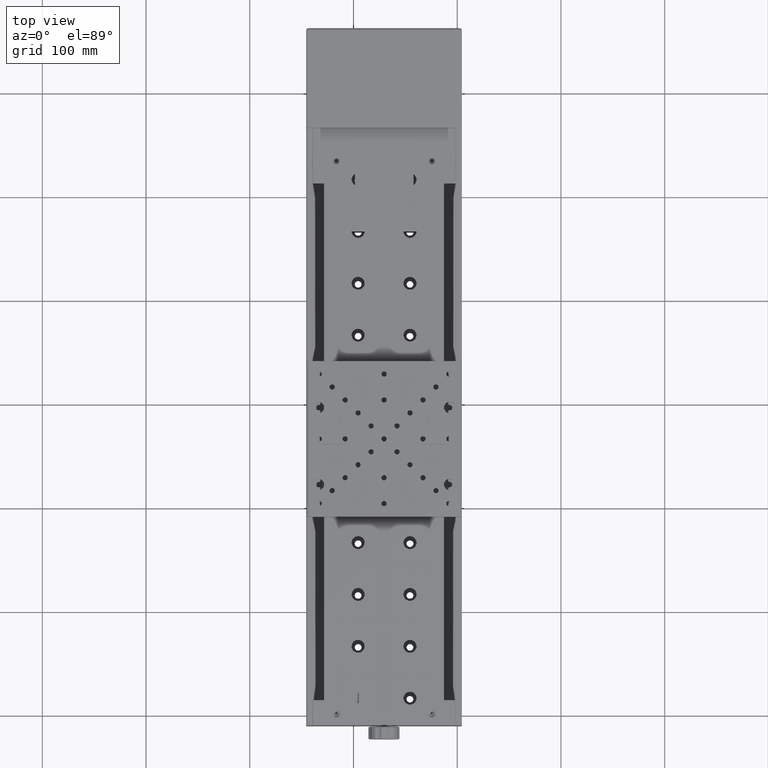
[diagram: clean part render]
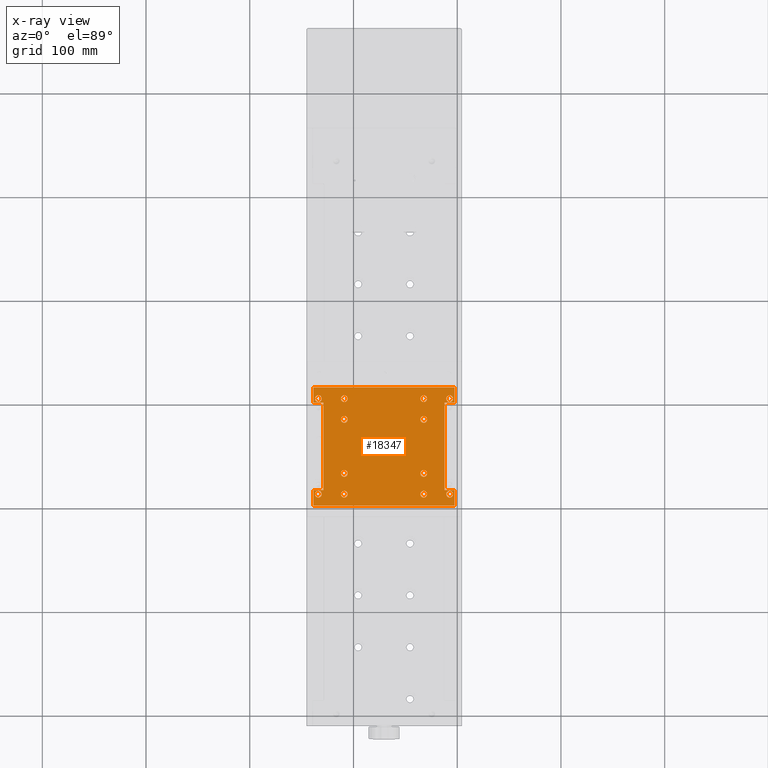
[diagram: x-ray — body ghosted, one internal face saturated and labeled with its STEP entity id]
A machine part, top view, then the same camera in x-ray: the body is ghosted and one INTERNAL B-rep face — a face not visible from any outside direction — is saturated and labeled: STEP entity #18347.
In plain terms, the highlighted planar face has unit normal (0, -0, 1).
Its self-contained STEP definition (entity closure, byte-faithful):
#346 = ORIENTED_EDGE ( 'NONE', *, *, #75438, .F. ) ;
#429 = EDGE_CURVE ( 'NONE', #1476, #4465, #35926, .T. ) ;
#568 = CARTESIAN_POINT ( 'NONE',  ( -128.8854323028809858, 116.8576019277921887, 34.04665025355615171 ) ) ;
#652 = EDGE_CURVE ( 'NONE', #51161, #11565, #21382, .T. ) ;
#1138 = CARTESIAN_POINT ( 'NONE',  ( -35.53543230288079968, 185.0076019277925070, 34.04665025355615171 ) ) ;
#1196 = DIRECTION ( 'NONE',  ( 0.000000000000000000, -2.758753472158164656E-17, 1.000000000000000000 ) ) ;
#1245 = DIRECTION ( 'NONE',  ( 0.000000000000000000, -2.758753472158164656E-17, 1.000000000000000000 ) ) ;
#1323 = AXIS2_PLACEMENT_3D ( 'NONE', #13980, #76557, #39899 ) ;
#1476 = VERTEX_POINT ( 'NONE', #72974 ) ;
#1538 = LINE ( 'NONE', #63654, #41041 ) ;
#1578 = VERTEX_POINT ( 'NONE', #44133 ) ;
#1585 = EDGE_CURVE ( 'NONE', #54900, #79260, #42820, .T. ) ;
#2040 = DIRECTION ( 'NONE',  ( 0.000000000000000000, -2.758753472158164656E-17, 1.000000000000000000 ) ) ;
#2272 = ORIENTED_EDGE ( 'NONE', *, *, #20201, .F. ) ;
#2398 = DIRECTION ( 'NONE',  ( 0.000000000000000000, -2.758753472158164656E-17, 1.000000000000000000 ) ) ;
#2934 = ORIENTED_EDGE ( 'NONE', *, *, #31815, .T. ) ;
#3252 = VECTOR ( 'NONE', #63282, 1000.000000000000000 ) ;
#3369 = CARTESIAN_POINT ( 'NONE',  ( -112.1354323028808153, 132.9076019277922285, 34.04665025355615171 ) ) ;
#3401 = AXIS2_PLACEMENT_3D ( 'NONE', #6686, #24832, #24422 ) ;
#3509 = CARTESIAN_POINT ( 'NONE',  ( -112.1354323028808153, 205.0076019277925070, 34.04665025355615171 ) ) ;
#3899 = ORIENTED_EDGE ( 'NONE', *, *, #51355, .T. ) ;
#4029 = DIRECTION ( 'NONE',  ( -1.000000000000000000, 0.000000000000000000, 0.000000000000000000 ) ) ;
#4106 = EDGE_CURVE ( 'NONE', #16637, #67139, #11739, .T. ) ;
#4465 = VERTEX_POINT ( 'NONE', #64538 ) ;
#4651 = CARTESIAN_POINT ( 'NONE',  ( -2.285432302880815225, 102.0576019277922057, 34.04665025355615171 ) ) ;
#4688 = VERTEX_POINT ( 'NONE', #11288 ) ;
#4696 = CARTESIAN_POINT ( 'NONE',  ( -108.8854323028808011, 185.0076019277925070, 34.04665025355615171 ) ) ;
#5036 = DIRECTION ( 'NONE',  ( -2.670562739619359873E-16, -1.000000000000000000, -2.758753472158164656E-17 ) ) ;
#5493 = DIRECTION ( 'NONE',  ( 0.000000000000000000, -2.758753472158164656E-17, 1.000000000000000000 ) ) ;
#5860 = DIRECTION ( 'NONE',  ( 0.000000000000000000, -2.758753472158164656E-17, 1.000000000000000000 ) ) ;
#6518 = EDGE_CURVE ( 'NONE', #53971, #71647, #36723, .T. ) ;
#6555 = VERTEX_POINT ( 'NONE', #7779 ) ;
#6619 = EDGE_CURVE ( 'NONE', #64746, #38952, #32482, .T. ) ;
#6686 = CARTESIAN_POINT ( 'NONE',  ( -108.8854323028808011, 205.0076019277925070, 34.04665025355615171 ) ) ;
#6689 = CARTESIAN_POINT ( 'NONE',  ( -146.8150681160723821, 201.0576019277924900, 34.04665025355615171 ) ) ;
#6880 = DIRECTION ( 'NONE',  ( -1.000000000000000000, 3.885780586188049864E-16, 5.916456789157590292E-31 ) ) ;
#7348 = DIRECTION ( 'NONE',  ( -1.000000000000000000, 0.000000000000000000, 0.000000000000000000 ) ) ;
#7497 = CARTESIAN_POINT ( 'NONE',  ( -112.1354323028808153, 112.9076019277922001, 34.04665025355615171 ) ) ;
#7779 = CARTESIAN_POINT ( 'NONE',  ( -2.485432302880735467, 215.8576019277925298, 34.04665025355615171 ) ) ;
#7892 = DIRECTION ( 'NONE',  ( 1.000000000000000000, -3.885780586188049864E-16, -5.916456789157590292E-31 ) ) ;
#8255 = DIRECTION ( 'NONE',  ( 0.000000000000000000, -2.758753472158164656E-17, 1.000000000000000000 ) ) ;
#8354 = ORIENTED_EDGE ( 'NONE', *, *, #652, .F. ) ;
#8466 = CARTESIAN_POINT ( 'NONE',  ( -29.03543230288079968, 185.0076019277925070, 34.04665025355615171 ) ) ;
#8693 = VERTEX_POINT ( 'NONE', #68420 ) ;
#9189 = VERTEX_POINT ( 'NONE', #56776 ) ;
#9626 = VERTEX_POINT ( 'NONE', #77558 ) ;
#9930 = EDGE_CURVE ( 'NONE', #81433, #12419, #28932, .T. ) ;
#10055 = EDGE_CURVE ( 'NONE', #9626, #76110, #23640, .T. ) ;
#10629 = DIRECTION ( 'NONE',  ( 0.000000000000000000, -2.758753472158164656E-17, 1.000000000000000000 ) ) ;
#10728 = FACE_BOUND ( 'NONE', #24854, .T. ) ;
#10939 = AXIS2_PLACEMENT_3D ( 'NONE', #80204, #13005, #38110 ) ;
#11203 = VERTEX_POINT ( 'NONE', #3369 ) ;
#11288 = CARTESIAN_POINT ( 'NONE',  ( -10.53543230288079968, 112.9076019277922001, 34.04665025355615171 ) ) ;
#11565 = VERTEX_POINT ( 'NONE', #27493 ) ;
#11613 = CIRCLE ( 'NONE', #26094, 3.250000000000002665 ) ;
#11739 = CIRCLE ( 'NONE', #43230, 3.250000000000002665 ) ;
#12404 = CIRCLE ( 'NONE', #61203, 3.250000000000000444 ) ;
#12419 = VERTEX_POINT ( 'NONE', #41616 ) ;
#12588 = CIRCLE ( 'NONE', #38908, 3.250000000000002665 ) ;
#12679 = CARTESIAN_POINT ( 'NONE',  ( -32.28543230288079968, 132.9076019277922285, 34.04665025355615171 ) ) ;
#13002 = CIRCLE ( 'NONE', #49748, 3.250000000000002665 ) ;
#13005 = DIRECTION ( 'NONE',  ( 0.000000000000000000, -2.758753472158164656E-17, 1.000000000000000000 ) ) ;
#13350 = DIRECTION ( 'NONE',  ( 2.670562739619359873E-16, 1.000000000000000000, 2.758753472158164656E-17 ) ) ;
#13493 = DIRECTION ( 'NONE',  ( 0.000000000000000000, -2.758753472158164656E-17, 1.000000000000000000 ) ) ;
#13980 = CARTESIAN_POINT ( 'NONE',  ( -7.285432302880780142, 205.0076019277925070, 34.04665025355615171 ) ) ;
#14557 = VERTEX_POINT ( 'NONE', #60547 ) ;
#15189 = CARTESIAN_POINT ( 'NONE',  ( -128.8854323028809858, 201.0576019277924900, 34.04665025355615171 ) ) ;
#15319 = EDGE_LOOP ( 'NONE', ( #58737, #37011 ) ) ;
#15348 = CARTESIAN_POINT ( 'NONE',  ( -138.6854323028809972, 101.8576019277922029, 34.04665025355615171 ) ) ;
#15489 = VECTOR ( 'NONE', #23389, 1000.000000000000000 ) ;
#15687 = DIRECTION ( 'NONE',  ( 0.000000000000000000, -2.758753472158164656E-17, 1.000000000000000000 ) ) ;
#15947 = DIRECTION ( 'NONE',  ( 0.000000000000000000, -2.758753472158164656E-17, 1.000000000000000000 ) ) ;
#16357 = DIRECTION ( 'NONE',  ( 0.000000000000000000, -2.758753472158164656E-17, 1.000000000000000000 ) ) ;
#16589 = EDGE_CURVE ( 'NONE', #11203, #14557, #18963, .T. ) ;
#16637 = VERTEX_POINT ( 'NONE', #72729 ) ;
#16726 = CIRCLE ( 'NONE', #73252, 3.250000000000002665 ) ;
#16826 = EDGE_LOOP ( 'NONE', ( #21243, #53288 ) ) ;
#16884 = VERTEX_POINT ( 'NONE', #75615 ) ;
#17211 = DIRECTION ( 'NONE',  ( 0.000000000000000000, -2.758753472158164656E-17, 1.000000000000000000 ) ) ;
#17241 = CARTESIAN_POINT ( 'NONE',  ( -137.1354323028808153, 112.9076019277922001, 34.04665025355615171 ) ) ;
#17302 = CARTESIAN_POINT ( 'NONE',  ( -0.2854323028808165019, 101.8576019277922029, 34.04665025355615171 ) ) ;
#17584 = AXIS2_PLACEMENT_3D ( 'NONE', #47617, #15947, #54186 ) ;
#18347 = ADVANCED_FACE ( 'NONE', ( #36239, #42818, #54742, #61315, #79880, #10728, #67907, #23508, #31291, #49788, #81094, #30085, #67499 ), #18943, .T. ) ;
#18943 = PLANE ( 'NONE',  #34745 ) ;
#18963 = CIRCLE ( 'NONE', #17584, 3.250000000000002665 ) ;
#19225 = CIRCLE ( 'NONE', #21863, 3.249999999999999556 ) ;
#19527 = CARTESIAN_POINT ( 'NONE',  ( -35.53543230288079968, 132.9076019277922285, 34.04665025355615171 ) ) ;
#19702 = CARTESIAN_POINT ( 'NONE',  ( -133.8854323028808153, 112.9076019277922001, 34.04665025355615171 ) ) ;
#19748 = CARTESIAN_POINT ( 'NONE',  ( -29.03543230288079968, 112.9076019277922001, 34.04665025355615171 ) ) ;
#19877 = EDGE_LOOP ( 'NONE', ( #31028, #39839 ) ) ;
#20007 = CIRCLE ( 'NONE', #37152, 3.250000000000002665 ) ;
#20201 = EDGE_CURVE ( 'NONE', #39409, #69260, #58015, .T. ) ;
#20480 = AXIS2_PLACEMENT_3D ( 'NONE', #46009, #2398, #70716 ) ;
#20568 = CARTESIAN_POINT ( 'NONE',  ( -7.285432302880810340, 112.9076019277922001, 34.04665025355615171 ) ) ;
#20687 = DIRECTION ( 'NONE',  ( -1.000000000000000000, 0.000000000000000000, 0.000000000000000000 ) ) ;
#21024 = CARTESIAN_POINT ( 'NONE',  ( -32.28543230288079968, 205.0076019277925070, 34.04665025355615171 ) ) ;
#21243 = ORIENTED_EDGE ( 'NONE', *, *, #69510, .F. ) ;
#21382 = CIRCLE ( 'NONE', #58155, 3.250000000000002665 ) ;
#21494 = DIRECTION ( 'NONE',  ( 0.000000000000000000, -2.758753472158164656E-17, 1.000000000000000000 ) ) ;
#21863 = AXIS2_PLACEMENT_3D ( 'NONE', #67590, #80376, #61410 ) ;
#21921 = VERTEX_POINT ( 'NONE', #61214 ) ;
#22115 = ORIENTED_EDGE ( 'NONE', *, *, #78284, .T. ) ;
#22320 = VECTOR ( 'NONE', #38979, 1000.000000000000000 ) ;
#22333 = ORIENTED_EDGE ( 'NONE', *, *, #6518, .F. ) ;
#22733 = CARTESIAN_POINT ( 'NONE',  ( -133.8854323028808153, 205.0076019277925070, 34.04665025355615171 ) ) ;
#22820 = DIRECTION ( 'NONE',  ( -1.000000000000000000, 0.000000000000000000, 0.000000000000000000 ) ) ;
#23113 = ORIENTED_EDGE ( 'NONE', *, *, #72938, .F. ) ;
#23152 = CARTESIAN_POINT ( 'NONE',  ( -146.8150681160723821, 201.0576019277924900, 34.04665025355615171 ) ) ;
#23375 = VECTOR ( 'NONE', #35074, 1000.000000000000000 ) ;
#23389 = DIRECTION ( 'NONE',  ( -1.000000000000000000, 3.885780586188049864E-16, 5.916456789157590292E-31 ) ) ;
#23508 = FACE_BOUND ( 'NONE', #55554, .T. ) ;
#23640 = CIRCLE ( 'NONE', #74926, 3.250000000000002665 ) ;
#24422 = DIRECTION ( 'NONE',  ( -1.000000000000000000, 0.000000000000000000, 0.000000000000000000 ) ) ;
#24832 = DIRECTION ( 'NONE',  ( 0.000000000000000000, -2.758753472158164656E-17, 1.000000000000000000 ) ) ;
#24854 = EDGE_LOOP ( 'NONE', ( #49021, #65080 ) ) ;
#25109 = CARTESIAN_POINT ( 'NONE',  ( -32.28543230288079968, 112.9076019277922001, 34.04665025355615171 ) ) ;
#25678 = CARTESIAN_POINT ( 'NONE',  ( -2.485432302880765221, 116.8576019277921887, 34.04665025355615171 ) ) ;
#26094 = AXIS2_PLACEMENT_3D ( 'NONE', #21024, #77419, #45712 ) ;
#27196 = DIRECTION ( 'NONE',  ( -1.000000000000000000, 0.000000000000000000, 0.000000000000000000 ) ) ;
#27493 = CARTESIAN_POINT ( 'NONE',  ( -105.6354323028808011, 185.0076019277925070, 34.04665025355615171 ) ) ;
#27538 = CARTESIAN_POINT ( 'NONE',  ( -128.8854323028809858, 101.8576019277922029, 34.04665025355615171 ) ) ;
#27926 = EDGE_CURVE ( 'NONE', #11565, #51161, #48189, .T. ) ;
#28658 = CARTESIAN_POINT ( 'NONE',  ( -105.6354323028808011, 205.0076019277925070, 34.04665025355615171 ) ) ;
#28932 = CIRCLE ( 'NONE', #1323, 3.250000000000000444 ) ;
#29266 = DIRECTION ( 'NONE',  ( -1.000000000000000000, 0.000000000000000000, 0.000000000000000000 ) ) ;
#29489 = VECTOR ( 'NONE', #67559, 1000.000000000000000 ) ;
#29724 = DIRECTION ( 'NONE',  ( -1.000000000000000000, 0.000000000000000000, 0.000000000000000000 ) ) ;
#29747 = CIRCLE ( 'NONE', #74426, 3.250000000000002665 ) ;
#30085 = FACE_BOUND ( 'NONE', #50843, .T. ) ;
#30267 = CIRCLE ( 'NONE', #35532, 3.249999999999999556 ) ;
#30850 = ORIENTED_EDGE ( 'NONE', *, *, #34127, .T. ) ;
#30896 = DIRECTION ( 'NONE',  ( 0.000000000000000000, -1.000000000000000000, -2.758753472158164656E-17 ) ) ;
#30992 = CIRCLE ( 'NONE', #20480, 3.250000000000002665 ) ;
#31028 = ORIENTED_EDGE ( 'NONE', *, *, #9930, .F. ) ;
#31064 = CARTESIAN_POINT ( 'NONE',  ( -2.485432302880765221, 116.8576019277921887, 34.04665025355615171 ) ) ;
#31181 = CARTESIAN_POINT ( 'NONE',  ( -112.1354323028808153, 185.0076019277925070, 34.04665025355615171 ) ) ;
#31291 = FACE_BOUND ( 'NONE', #80835, .T. ) ;
#31337 = VERTEX_POINT ( 'NONE', #46803 ) ;
#31815 = EDGE_CURVE ( 'NONE', #53971, #40471, #68376, .T. ) ;
#32044 = ORIENTED_EDGE ( 'NONE', *, *, #40730, .T. ) ;
#32074 = DIRECTION ( 'NONE',  ( -1.000000000000000000, 0.000000000000000000, 0.000000000000000000 ) ) ;
#32420 = AXIS2_PLACEMENT_3D ( 'NONE', #4696, #5493, #22820 ) ;
#32482 = LINE ( 'NONE', #27538, #61181 ) ;
#33889 = CIRCLE ( 'NONE', #61454, 3.250000000000002665 ) ;
#34100 = ORIENTED_EDGE ( 'NONE', *, *, #4106, .F. ) ;
#34127 = EDGE_CURVE ( 'NONE', #4465, #46716, #69306, .T. ) ;
#34548 = AXIS2_PLACEMENT_3D ( 'NONE', #39872, #16357, #4029 ) ;
#34561 = CIRCLE ( 'NONE', #10939, 3.250000000000002665 ) ;
#34745 = AXIS2_PLACEMENT_3D ( 'NONE', #17302, #55148, #30896 ) ;
#35074 = DIRECTION ( 'NONE',  ( -1.455344893050667910E-16, -1.000000000000000000, -2.758753472158164656E-17 ) ) ;
#35344 = EDGE_CURVE ( 'NONE', #6555, #21921, #1538, .T. ) ;
#35532 = AXIS2_PLACEMENT_3D ( 'NONE', #20568, #1245, #63764 ) ;
#35776 = VECTOR ( 'NONE', #47540, 1000.000000000000000 ) ;
#35926 = LINE ( 'NONE', #4651, #63938 ) ;
#36186 = CARTESIAN_POINT ( 'NONE',  ( -137.1354323028808153, 205.0076019277925070, 34.04665025355615171 ) ) ;
#36239 = FACE_BOUND ( 'NONE', #19877, .T. ) ;
#36723 = LINE ( 'NONE', #62208, #50685 ) ;
#37011 = ORIENTED_EDGE ( 'NONE', *, *, #37484, .F. ) ;
#37152 = AXIS2_PLACEMENT_3D ( 'NONE', #46979, #21494, #20687 ) ;
#37431 = EDGE_LOOP ( 'NONE', ( #8354, #69676 ) ) ;
#37484 = EDGE_CURVE ( 'NONE', #14557, #11203, #16726, .T. ) ;
#37553 = CARTESIAN_POINT ( 'NONE',  ( -32.28543230288079968, 112.9076019277922001, 34.04665025355615171 ) ) ;
#37570 = EDGE_CURVE ( 'NONE', #9189, #58146, #13002, .T. ) ;
#37881 = ORIENTED_EDGE ( 'NONE', *, *, #37570, .F. ) ;
#38110 = DIRECTION ( 'NONE',  ( -1.000000000000000000, 0.000000000000000000, 0.000000000000000000 ) ) ;
#38250 = DIRECTION ( 'NONE',  ( -1.000000000000000000, 0.000000000000000000, 0.000000000000000000 ) ) ;
#38733 = ORIENTED_EDGE ( 'NONE', *, *, #70068, .F. ) ;
#38908 = AXIS2_PLACEMENT_3D ( 'NONE', #12679, #13493, #44764 ) ;
#38952 = VERTEX_POINT ( 'NONE', #15189 ) ;
#38979 = DIRECTION ( 'NONE',  ( 2.670562739619359873E-16, 1.000000000000000000, 2.758753472158164656E-17 ) ) ;
#39004 = CARTESIAN_POINT ( 'NONE',  ( 4.114523684553554439, 116.8576019277921887, 34.04665025355615171 ) ) ;
#39409 = VERTEX_POINT ( 'NONE', #1138 ) ;
#39480 = CARTESIAN_POINT ( 'NONE',  ( -133.8854323028808153, 112.9076019277922001, 34.04665025355615171 ) ) ;
#39839 = ORIENTED_EDGE ( 'NONE', *, *, #44698, .F. ) ;
#39872 = CARTESIAN_POINT ( 'NONE',  ( -32.28543230288079968, 185.0076019277925070, 34.04665025355615171 ) ) ;
#39899 = DIRECTION ( 'NONE',  ( -1.000000000000000000, 0.000000000000000000, 0.000000000000000000 ) ) ;
#40471 = VERTEX_POINT ( 'NONE', #62638 ) ;
#40589 = EDGE_CURVE ( 'NONE', #65134, #16884, #33889, .T. ) ;
#40730 = EDGE_CURVE ( 'NONE', #64746, #31337, #72345, .T. ) ;
#41041 = VECTOR ( 'NONE', #6880, 1000.000000000000000 ) ;
#41511 = ORIENTED_EDGE ( 'NONE', *, *, #35344, .T. ) ;
#41616 = CARTESIAN_POINT ( 'NONE',  ( -4.035432302880774813, 205.0076019277925070, 34.04665025355615171 ) ) ;
#42176 = VECTOR ( 'NONE', #13350, 1000.000000000000000 ) ;
#42696 = CARTESIAN_POINT ( 'NONE',  ( 4.114523684553554439, 116.8576019277921887, 34.04665025355615171 ) ) ;
#42818 = FACE_BOUND ( 'NONE', #51969, .T. ) ;
#42820 = CIRCLE ( 'NONE', #3401, 3.250000000000002665 ) ;
#43019 = LINE ( 'NONE', #6689, #76204 ) ;
#43148 = EDGE_LOOP ( 'NONE', ( #79281, #34100 ) ) ;
#43230 = AXIS2_PLACEMENT_3D ( 'NONE', #58038, #8255, #27196 ) ;
#43790 = ORIENTED_EDGE ( 'NONE', *, *, #51628, .T. ) ;
#43802 = EDGE_CURVE ( 'NONE', #46716, #71647, #45174, .T. ) ;
#44085 = ORIENTED_EDGE ( 'NONE', *, *, #6619, .F. ) ;
#44113 = CARTESIAN_POINT ( 'NONE',  ( -138.6854323028809972, 201.0576019277924900, 34.04665025355615171 ) ) ;
#44133 = CARTESIAN_POINT ( 'NONE',  ( -29.03543230288079968, 205.0076019277925070, 34.04665025355615171 ) ) ;
#44698 = EDGE_CURVE ( 'NONE', #12419, #81433, #12404, .T. ) ;
#44764 = DIRECTION ( 'NONE',  ( -1.000000000000000000, 0.000000000000000000, 0.000000000000000000 ) ) ;
#45078 = ORIENTED_EDGE ( 'NONE', *, *, #78804, .F. ) ;
#45147 = LINE ( 'NONE', #51718, #22320 ) ;
#45174 = LINE ( 'NONE', #39004, #3252 ) ;
#45202 = VERTEX_POINT ( 'NONE', #51935 ) ;
#45620 = DIRECTION ( 'NONE',  ( 1.455344893050667910E-16, 1.000000000000000000, 2.758753472158164656E-17 ) ) ;
#45712 = DIRECTION ( 'NONE',  ( -1.000000000000000000, 0.000000000000000000, 0.000000000000000000 ) ) ;
#46009 = CARTESIAN_POINT ( 'NONE',  ( -108.8854323028808011, 112.9076019277922001, 34.04665025355615171 ) ) ;
#46016 = EDGE_CURVE ( 'NONE', #67139, #16637, #12588, .T. ) ;
#46302 = CARTESIAN_POINT ( 'NONE',  ( -108.8854323028808011, 205.0076019277925070, 34.04665025355615171 ) ) ;
#46716 = VERTEX_POINT ( 'NONE', #25678 ) ;
#46803 = CARTESIAN_POINT ( 'NONE',  ( -138.6854323028809972, 116.8576019277921887, 34.04665025355615171 ) ) ;
#46923 = CIRCLE ( 'NONE', #53487, 3.250000000000002665 ) ;
#46979 = CARTESIAN_POINT ( 'NONE',  ( -32.28543230288079968, 205.0076019277925070, 34.04665025355615171 ) ) ;
#47540 = DIRECTION ( 'NONE',  ( -1.455344893050667910E-16, -1.000000000000000000, -2.758753472158164656E-17 ) ) ;
#47617 = CARTESIAN_POINT ( 'NONE',  ( -108.8854323028808011, 132.9076019277922285, 34.04665025355615171 ) ) ;
#47728 = EDGE_CURVE ( 'NONE', #79260, #54900, #46923, .T. ) ;
#48189 = CIRCLE ( 'NONE', #32420, 3.250000000000002665 ) ;
#48479 = DIRECTION ( 'NONE',  ( -1.000000000000000000, 0.000000000000000000, 0.000000000000000000 ) ) ;
#49021 = ORIENTED_EDGE ( 'NONE', *, *, #66535, .F. ) ;
#49748 = AXIS2_PLACEMENT_3D ( 'NONE', #25109, #69515, #32074 ) ;
#49759 = DIRECTION ( 'NONE',  ( 0.000000000000000000, -2.758753472158164656E-17, 1.000000000000000000 ) ) ;
#49788 = FACE_BOUND ( 'NONE', #16826, .T. ) ;
#49943 = ORIENTED_EDGE ( 'NONE', *, *, #1585, .F. ) ;
#50280 = LINE ( 'NONE', #44113, #35776 ) ;
#50393 = ORIENTED_EDGE ( 'NONE', *, *, #66131, .T. ) ;
#50685 = VECTOR ( 'NONE', #5036, 1000.000000000000000 ) ;
#50843 = EDGE_LOOP ( 'NONE', ( #69593, #38733 ) ) ;
#51161 = VERTEX_POINT ( 'NONE', #31181 ) ;
#51355 = EDGE_CURVE ( 'NONE', #40471, #6555, #45147, .T. ) ;
#51628 = EDGE_CURVE ( 'NONE', #64457, #38952, #43019, .T. ) ;
#51683 = VERTEX_POINT ( 'NONE', #7497 ) ;
#51718 = CARTESIAN_POINT ( 'NONE',  ( -2.485432302880735467, 216.0576019277924900, 34.04665025355615171 ) ) ;
#51935 = CARTESIAN_POINT ( 'NONE',  ( -4.035432302880810340, 112.9076019277922001, 34.04665025355615171 ) ) ;
#51969 = EDGE_LOOP ( 'NONE', ( #2272, #45078 ) ) ;
#52043 = EDGE_CURVE ( 'NONE', #4688, #45202, #30267, .T. ) ;
#53288 = ORIENTED_EDGE ( 'NONE', *, *, #10055, .F. ) ;
#53487 = AXIS2_PLACEMENT_3D ( 'NONE', #46302, #78403, #71811 ) ;
#53583 = LINE ( 'NONE', #15348, #23375 ) ;
#53971 = VERTEX_POINT ( 'NONE', #56424 ) ;
#54186 = DIRECTION ( 'NONE',  ( -1.000000000000000000, 0.000000000000000000, 0.000000000000000000 ) ) ;
#54252 = CIRCLE ( 'NONE', #34548, 3.250000000000002665 ) ;
#54308 = EDGE_LOOP ( 'NONE', ( #56436, #30850, #60798, #22333, #2934, #3899, #41511, #22115, #43790, #44085, #32044, #50393 ) ) ;
#54742 = FACE_BOUND ( 'NONE', #43148, .T. ) ;
#54900 = VERTEX_POINT ( 'NONE', #3509 ) ;
#55148 = DIRECTION ( 'NONE',  ( 5.809257682315679924E-31, -2.758753472158164656E-17, 1.000000000000000000 ) ) ;
#55359 = AXIS2_PLACEMENT_3D ( 'NONE', #22733, #72914, #29724 ) ;
#55554 = EDGE_LOOP ( 'NONE', ( #37881, #61507 ) ) ;
#55712 = ORIENTED_EDGE ( 'NONE', *, *, #57521, .F. ) ;
#56424 = CARTESIAN_POINT ( 'NONE',  ( -12.28543230288079968, 201.0576019277919784, 34.04665025355615171 ) ) ;
#56436 = ORIENTED_EDGE ( 'NONE', *, *, #429, .T. ) ;
#56776 = CARTESIAN_POINT ( 'NONE',  ( -35.53543230288079968, 112.9076019277922001, 34.04665025355615171 ) ) ;
#56870 = DIRECTION ( 'NONE',  ( -1.000000000000000000, 0.000000000000000000, 0.000000000000000000 ) ) ;
#57504 = DIRECTION ( 'NONE',  ( -1.000000000000000000, 0.000000000000000000, 0.000000000000000000 ) ) ;
#57521 = EDGE_CURVE ( 'NONE', #45202, #4688, #19225, .T. ) ;
#57612 = EDGE_CURVE ( 'NONE', #58146, #9189, #29747, .T. ) ;
#57916 = CARTESIAN_POINT ( 'NONE',  ( -32.28543230288079968, 185.0076019277925070, 34.04665025355615171 ) ) ;
#58015 = CIRCLE ( 'NONE', #65886, 3.250000000000002665 ) ;
#58038 = CARTESIAN_POINT ( 'NONE',  ( -32.28543230288079968, 132.9076019277922285, 34.04665025355615171 ) ) ;
#58146 = VERTEX_POINT ( 'NONE', #19748 ) ;
#58155 = AXIS2_PLACEMENT_3D ( 'NONE', #66675, #15687, #29266 ) ;
#58737 = ORIENTED_EDGE ( 'NONE', *, *, #16589, .F. ) ;
#60547 = CARTESIAN_POINT ( 'NONE',  ( -105.6354323028808011, 132.9076019277922285, 34.04665025355615171 ) ) ;
#60692 = AXIS2_PLACEMENT_3D ( 'NONE', #19702, #1196, #7348 ) ;
#60798 = ORIENTED_EDGE ( 'NONE', *, *, #43802, .T. ) ;
#61181 = VECTOR ( 'NONE', #45620, 1000.000000000000000 ) ;
#61203 = AXIS2_PLACEMENT_3D ( 'NONE', #73593, #17211, #67404 ) ;
#61214 = CARTESIAN_POINT ( 'NONE',  ( -138.6854323028809972, 215.8576019277925298, 34.04665025355615171 ) ) ;
#61315 = FACE_BOUND ( 'NONE', #37431, .T. ) ;
#61410 = DIRECTION ( 'NONE',  ( -1.000000000000000000, 0.000000000000000000, 0.000000000000000000 ) ) ;
#61454 = AXIS2_PLACEMENT_3D ( 'NONE', #39480, #2040, #64161 ) ;
#61507 = ORIENTED_EDGE ( 'NONE', *, *, #57612, .F. ) ;
#62208 = CARTESIAN_POINT ( 'NONE',  ( -12.28543230288081922, 101.8576019277922029, 34.04665025355615171 ) ) ;
#62638 = CARTESIAN_POINT ( 'NONE',  ( -2.485432302880730138, 201.0576019277919784, 34.04665025355615171 ) ) ;
#62870 = DIRECTION ( 'NONE',  ( 0.000000000000000000, -2.758753472158164656E-17, 1.000000000000000000 ) ) ;
#63282 = DIRECTION ( 'NONE',  ( -1.000000000000000000, 3.885780586188049864E-16, 5.916456789157590292E-31 ) ) ;
#63654 = CARTESIAN_POINT ( 'NONE',  ( -138.8854323028808153, 215.8576019277925298, 34.04665025355615171 ) ) ;
#63764 = DIRECTION ( 'NONE',  ( -1.000000000000000000, 0.000000000000000000, 0.000000000000000000 ) ) ;
#63850 = EDGE_LOOP ( 'NONE', ( #346, #23113 ) ) ;
#63938 = VECTOR ( 'NONE', #7892, 1000.000000000000000 ) ;
#64113 = EDGE_LOOP ( 'NONE', ( #73077, #55712 ) ) ;
#64161 = DIRECTION ( 'NONE',  ( -1.000000000000000000, 0.000000000000000000, 0.000000000000000000 ) ) ;
#64326 = ORIENTED_EDGE ( 'NONE', *, *, #47728, .F. ) ;
#64457 = VERTEX_POINT ( 'NONE', #71007 ) ;
#64538 = CARTESIAN_POINT ( 'NONE',  ( -2.485432302880765221, 102.0576019277922057, 34.04665025355615171 ) ) ;
#64746 = VERTEX_POINT ( 'NONE', #568 ) ;
#65080 = ORIENTED_EDGE ( 'NONE', *, *, #72173, .F. ) ;
#65134 = VERTEX_POINT ( 'NONE', #17241 ) ;
#65886 = AXIS2_PLACEMENT_3D ( 'NONE', #57916, #62870, #57504 ) ;
#66131 = EDGE_CURVE ( 'NONE', #31337, #1476, #53583, .T. ) ;
#66535 = EDGE_CURVE ( 'NONE', #8693, #1578, #11613, .T. ) ;
#66675 = CARTESIAN_POINT ( 'NONE',  ( -108.8854323028808011, 185.0076019277925070, 34.04665025355615171 ) ) ;
#66998 = CARTESIAN_POINT ( 'NONE',  ( -133.8854323028808153, 205.0076019277925070, 34.04665025355615171 ) ) ;
#67139 = VERTEX_POINT ( 'NONE', #19527 ) ;
#67404 = DIRECTION ( 'NONE',  ( -1.000000000000000000, 0.000000000000000000, 0.000000000000000000 ) ) ;
#67499 = FACE_OUTER_BOUND ( 'NONE', #54308, .T. ) ;
#67559 = DIRECTION ( 'NONE',  ( 1.000000000000000000, -3.885780586188049864E-16, -5.916456789157590292E-31 ) ) ;
#67590 = CARTESIAN_POINT ( 'NONE',  ( -7.285432302880810340, 112.9076019277922001, 34.04665025355615171 ) ) ;
#67907 = FACE_BOUND ( 'NONE', #64113, .T. ) ;
#68292 = CARTESIAN_POINT ( 'NONE',  ( -108.8854323028808011, 132.9076019277922285, 34.04665025355615171 ) ) ;
#68376 = LINE ( 'NONE', #23152, #29489 ) ;
#68420 = CARTESIAN_POINT ( 'NONE',  ( -35.53543230288079968, 205.0076019277925070, 34.04665025355615171 ) ) ;
#69229 = DIRECTION ( 'NONE',  ( 1.000000000000000000, -3.885780586188049864E-16, -5.916456789157590292E-31 ) ) ;
#69260 = VERTEX_POINT ( 'NONE', #8466 ) ;
#69306 = LINE ( 'NONE', #31064, #42176 ) ;
#69510 = EDGE_CURVE ( 'NONE', #76110, #9626, #77772, .T. ) ;
#69515 = DIRECTION ( 'NONE',  ( 0.000000000000000000, -2.758753472158164656E-17, 1.000000000000000000 ) ) ;
#69593 = ORIENTED_EDGE ( 'NONE', *, *, #40589, .F. ) ;
#69676 = ORIENTED_EDGE ( 'NONE', *, *, #27926, .F. ) ;
#70068 = EDGE_CURVE ( 'NONE', #16884, #65134, #76476, .T. ) ;
#70188 = CARTESIAN_POINT ( 'NONE',  ( -105.6354323028808011, 112.9076019277922001, 34.04665025355615171 ) ) ;
#70716 = DIRECTION ( 'NONE',  ( -1.000000000000000000, 0.000000000000000000, 0.000000000000000000 ) ) ;
#71007 = CARTESIAN_POINT ( 'NONE',  ( -138.6854323028809972, 201.0576019277924900, 34.04665025355615171 ) ) ;
#71647 = VERTEX_POINT ( 'NONE', #73051 ) ;
#71811 = DIRECTION ( 'NONE',  ( -1.000000000000000000, 0.000000000000000000, 0.000000000000000000 ) ) ;
#72173 = EDGE_CURVE ( 'NONE', #1578, #8693, #20007, .T. ) ;
#72345 = LINE ( 'NONE', #42696, #15489 ) ;
#72729 = CARTESIAN_POINT ( 'NONE',  ( -29.03543230288079968, 132.9076019277922285, 34.04665025355615171 ) ) ;
#72821 = VERTEX_POINT ( 'NONE', #70188 ) ;
#72914 = DIRECTION ( 'NONE',  ( 0.000000000000000000, -2.758753472158164656E-17, 1.000000000000000000 ) ) ;
#72938 = EDGE_CURVE ( 'NONE', #72821, #51683, #34561, .T. ) ;
#72974 = CARTESIAN_POINT ( 'NONE',  ( -138.6854323028809972, 102.0576019277922057, 34.04665025355615171 ) ) ;
#73051 = CARTESIAN_POINT ( 'NONE',  ( -12.28543230288079968, 116.8576019277921887, 34.04665025355615171 ) ) ;
#73077 = ORIENTED_EDGE ( 'NONE', *, *, #52043, .F. ) ;
#73252 = AXIS2_PLACEMENT_3D ( 'NONE', #68292, #49759, #38250 ) ;
#73593 = CARTESIAN_POINT ( 'NONE',  ( -7.285432302880780142, 205.0076019277925070, 34.04665025355615171 ) ) ;
#74426 = AXIS2_PLACEMENT_3D ( 'NONE', #37553, #5860, #56870 ) ;
#74926 = AXIS2_PLACEMENT_3D ( 'NONE', #66998, #10629, #48479 ) ;
#75438 = EDGE_CURVE ( 'NONE', #51683, #72821, #30992, .T. ) ;
#75615 = CARTESIAN_POINT ( 'NONE',  ( -130.6354323028807869, 112.9076019277922001, 34.04665025355615171 ) ) ;
#76110 = VERTEX_POINT ( 'NONE', #36186 ) ;
#76204 = VECTOR ( 'NONE', #69229, 1000.000000000000000 ) ;
#76476 = CIRCLE ( 'NONE', #60692, 3.250000000000002665 ) ;
#76544 = CARTESIAN_POINT ( 'NONE',  ( -10.53543230288078014, 205.0076019277925070, 34.04665025355615171 ) ) ;
#76557 = DIRECTION ( 'NONE',  ( 0.000000000000000000, -2.758753472158164656E-17, 1.000000000000000000 ) ) ;
#77419 = DIRECTION ( 'NONE',  ( 0.000000000000000000, -2.758753472158164656E-17, 1.000000000000000000 ) ) ;
#77558 = CARTESIAN_POINT ( 'NONE',  ( -130.6354323028807869, 205.0076019277925070, 34.04665025355615171 ) ) ;
#77772 = CIRCLE ( 'NONE', #55359, 3.250000000000002665 ) ;
#78284 = EDGE_CURVE ( 'NONE', #21921, #64457, #50280, .T. ) ;
#78403 = DIRECTION ( 'NONE',  ( 0.000000000000000000, -2.758753472158164656E-17, 1.000000000000000000 ) ) ;
#78804 = EDGE_CURVE ( 'NONE', #69260, #39409, #54252, .T. ) ;
#79260 = VERTEX_POINT ( 'NONE', #28658 ) ;
#79281 = ORIENTED_EDGE ( 'NONE', *, *, #46016, .F. ) ;
#79880 = FACE_BOUND ( 'NONE', #15319, .T. ) ;
#80204 = CARTESIAN_POINT ( 'NONE',  ( -108.8854323028808011, 112.9076019277922001, 34.04665025355615171 ) ) ;
#80376 = DIRECTION ( 'NONE',  ( 0.000000000000000000, -2.758753472158164656E-17, 1.000000000000000000 ) ) ;
#80835 = EDGE_LOOP ( 'NONE', ( #49943, #64326 ) ) ;
#81094 = FACE_BOUND ( 'NONE', #63850, .T. ) ;
#81433 = VERTEX_POINT ( 'NONE', #76544 ) ;